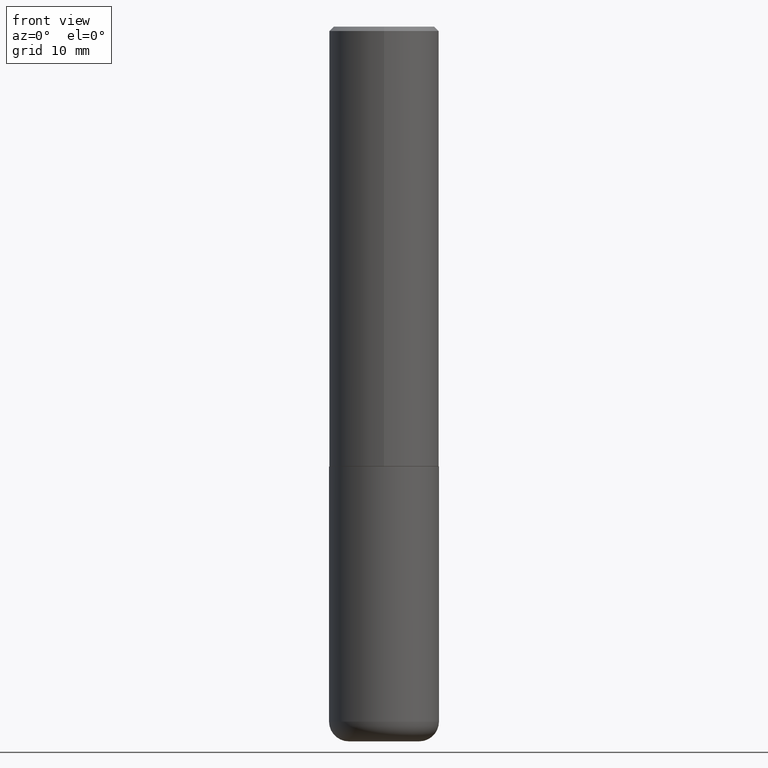
[diagram: clean part render]
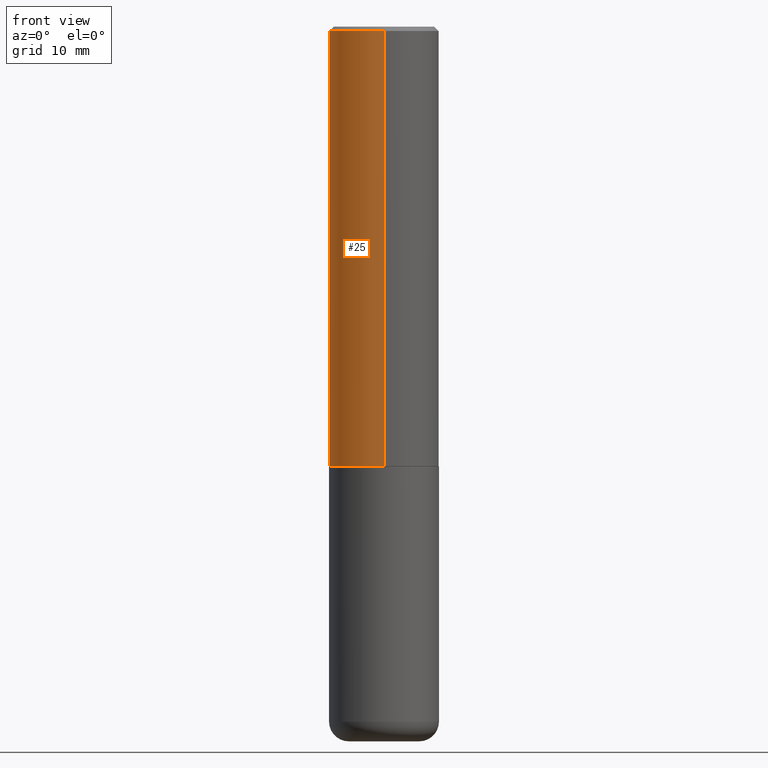
[diagram: same view with one face highlighted and labeled with its STEP entity id]
A machine part, front view. The second image highlights one B-rep face of the part: STEP entity #25.
In plain terms, the highlighted cylindrical surface (partial cylindrical patch) has radius 6.35 mm, axis along (-0, 0, 1).
Its self-contained STEP definition (entity closure, byte-faithful):
#1 = DIRECTION ( 'NONE',  ( -2.443621766204130648E-29, 3.494126405222933371E-15, 1.000000000000000000 ) ) ;
#3 = DIRECTION ( 'NONE',  ( -2.443621766204130648E-29, 3.494126405222933371E-15, 1.000000000000000000 ) ) ;
#9 = DIRECTION ( 'NONE',  ( -6.982962677686266711E-15, -1.000000000000000000, 3.278217592397113101E-15 ) ) ;
#10 = ORIENTED_EDGE ( 'NONE', *, *, #372, .T. ) ;
#21 = VERTEX_POINT ( 'NONE', #311 ) ;
#25 = ADVANCED_FACE ( 'NONE', ( #26 ), #155, .T. ) ;
#26 = FACE_OUTER_BOUND ( 'NONE', #208, .T. ) ;
#33 = CARTESIAN_POINT ( 'NONE',  ( -1.745740669421519346E-15, -0.2500000000000072164, -1.998999999999999000 ) ) ;
#36 = CARTESIAN_POINT ( 'NONE',  ( 4.887243532408272857E-31, -6.988252810445882815E-17, -0.02000000000000004552 ) ) ;
#44 = DIRECTION ( 'NONE',  ( -2.443621766204130368E-29, 3.494126405222933371E-15, 1.000000000000000000 ) ) ;
#53 = AXIS2_PLACEMENT_3D ( 'NONE', #75, #44, #9 ) ;
#69 = LINE ( 'NONE', #321, #268 ) ;
#75 = CARTESIAN_POINT ( 'NONE',  ( 4.884799910642056120E-29, -6.984758684040643933E-15, -1.998999999999999888 ) ) ;
#97 = CARTESIAN_POINT ( 'NONE',  ( 1.745740669421567269E-15, 0.2499999999999999722, -0.02000000000000092329 ) ) ;
#103 = EDGE_CURVE ( 'NONE', #256, #149, #69, .T. ) ;
#108 = AXIS2_PLACEMENT_3D ( 'NONE', #36, #367, #141 ) ;
#119 = ORIENTED_EDGE ( 'NONE', *, *, #103, .F. ) ;
#121 = ORIENTED_EDGE ( 'NONE', *, *, #156, .F. ) ;
#126 = DIRECTION ( 'NONE',  ( -2.443621766204130368E-29, 3.494126405222933371E-15, 1.000000000000000000 ) ) ;
#141 = DIRECTION ( 'NONE',  ( -6.982962677686265133E-15, -1.000000000000000000, 3.500180241882336472E-15 ) ) ;
#149 = VERTEX_POINT ( 'NONE', #97 ) ;
#155 = CYLINDRICAL_SURFACE ( 'NONE', #244, 0.2500000000000001110 ) ;
#156 = EDGE_CURVE ( 'NONE', #149, #21, #179, .T. ) ;
#160 = DIRECTION ( 'NONE',  ( -6.982962677686266711E-15, -1.000000000000000000, 3.494126405222933371E-15 ) ) ;
#179 = CIRCLE ( 'NONE', #108, 0.2500000000000000555 ) ;
#188 = LINE ( 'NONE', #293, #414 ) ;
#208 = EDGE_LOOP ( 'NONE', ( #119, #10, #331, #121 ) ) ;
#234 = CIRCLE ( 'NONE', #53, 0.2500000000000002220 ) ;
#244 = AXIS2_PLACEMENT_3D ( 'NONE', #312, #126, #160 ) ;
#256 = VERTEX_POINT ( 'NONE', #290 ) ;
#268 = VECTOR ( 'NONE', #3, 39.37007874015748143 ) ;
#290 = CARTESIAN_POINT ( 'NONE',  ( 1.776356839400276103E-15, 0.2499999999999932276, -1.999000000000000776 ) ) ;
#293 = CARTESIAN_POINT ( 'NONE',  ( -1.745740669421567467E-15, -0.2500000000000001110, 8.735316013057337372E-16 ) ) ;
#299 = VERTEX_POINT ( 'NONE', #33 ) ;
#311 = CARTESIAN_POINT ( 'NONE',  ( -1.715124499442882496E-15, -0.2500000000000001110, -0.01999999999999917122 ) ) ;
#312 = CARTESIAN_POINT ( 'NONE',  ( 0.000000000000000000, 0.000000000000000000, 0.000000000000000000 ) ) ;
#321 = CARTESIAN_POINT ( 'NONE',  ( 1.776356839400251254E-15, 0.2500000000000001110, -8.735316013057337372E-16 ) ) ;
#331 = ORIENTED_EDGE ( 'NONE', *, *, #336, .T. ) ;
#336 = EDGE_CURVE ( 'NONE', #299, #21, #188, .T. ) ;
#367 = DIRECTION ( 'NONE',  ( -2.443621766204130368E-29, 3.494126405222933371E-15, 1.000000000000000000 ) ) ;
#372 = EDGE_CURVE ( 'NONE', #256, #299, #234, .T. ) ;
#414 = VECTOR ( 'NONE', #1, 39.37007874015748143 ) ;